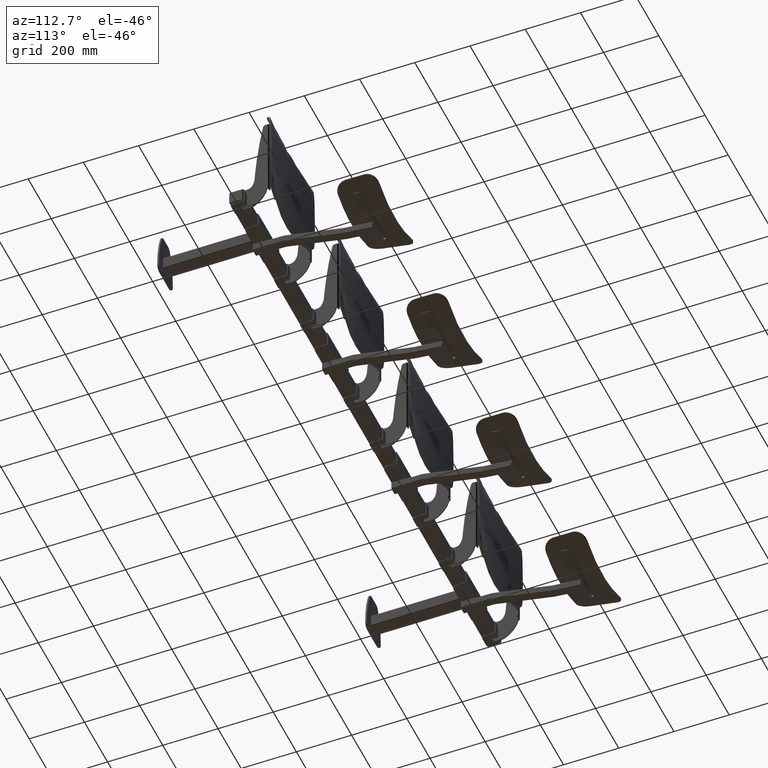
[diagram: clean part render]
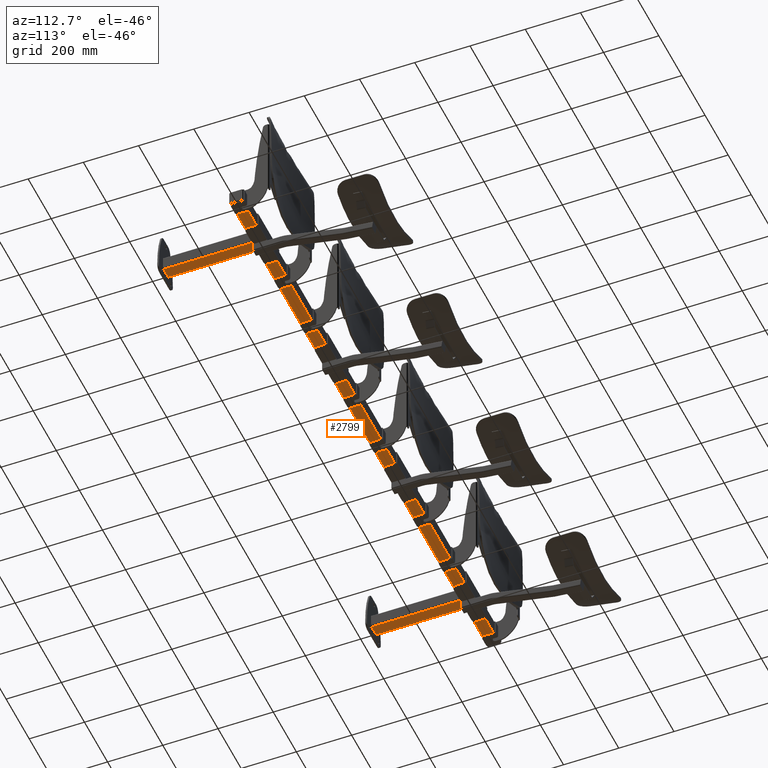
[diagram: same view with one face highlighted and labeled with its STEP entity id]
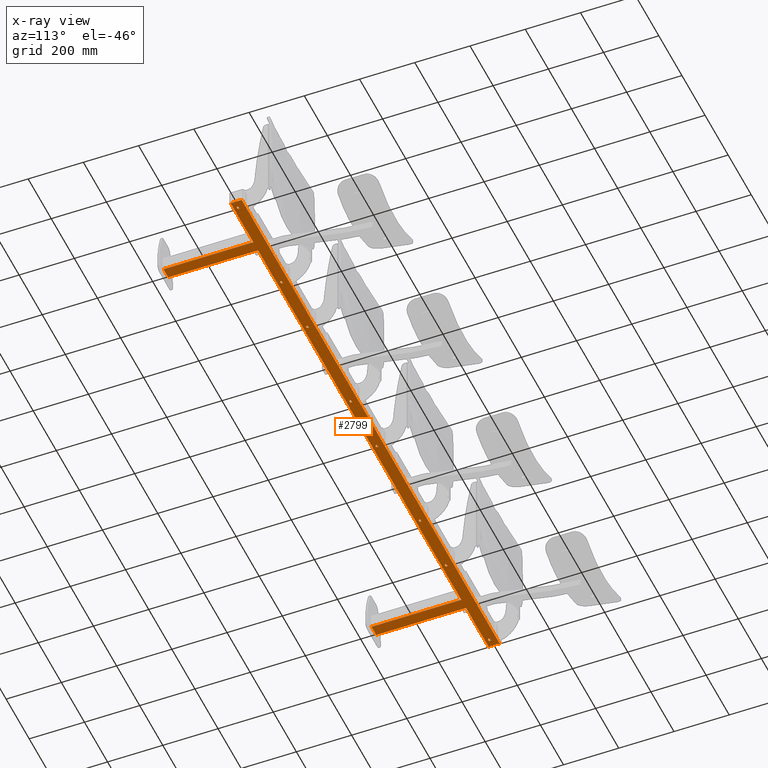
[diagram: x-ray of the same camera — body ghosted, the highlighted face saturated]
A machine part, auxiliary view. The second image highlights one B-rep face of the part: STEP entity #2799.
The next image is the same camera in x-ray: the body ghosted, the highlighted face saturated — about 0% of this face is hidden behind the body in this view.
In plain terms, the highlighted planar face has unit normal (0, 0, -1).
Its self-contained STEP definition (entity closure, byte-faithful):
#116 = AXIS2_PLACEMENT_3D ( 'NONE', #1575, #1576, #1577 ) ;
#118 = AXIS2_PLACEMENT_3D ( 'NONE', #1578, #1579, #1580 ) ;
#121 = AXIS2_PLACEMENT_3D ( 'NONE', #1581, #1582, #1583 ) ;
#123 = AXIS2_PLACEMENT_3D ( 'NONE', #1586, #1587, #1588 ) ;
#548 = AXIS2_PLACEMENT_3D ( 'NONE', #763, #764, #765 ) ;
#551 = AXIS2_PLACEMENT_3D ( 'NONE', #766, #767, #768 ) ;
#554 = AXIS2_PLACEMENT_3D ( 'NONE', #769, #770, #771 ) ;
#555 = AXIS2_PLACEMENT_3D ( 'NONE', #774, #775, #776 ) ;
#739 = CARTESIAN_POINT ( 'NONE',  ( 924.9999999999995500, 330.9999999999999400, -25.00000000000000000 ) ) ;
#742 = CARTESIAN_POINT ( 'NONE',  ( 880.0000000000000000, 325.9999999999999400, -25.00000000000000000 ) ) ;
#743 = CARTESIAN_POINT ( 'NONE',  ( 1116.000000000000000, 330.9999999999999400, -25.00000000000000000 ) ) ;
#744 = DIRECTION ( 'NONE',  ( -0.0000000000000000000, -1.000000000000000000, -0.0000000000000000000 ) ) ;
#745 = DIRECTION ( 'NONE',  ( -1.000000000000000000, -0.0000000000000000000, -0.0000000000000000000 ) ) ;
#746 = CARTESIAN_POINT ( 'NONE',  ( 919.9999999999996600, 5.999999999999999100, -25.00000000000000000 ) ) ;
#747 = DIRECTION ( 'NONE',  ( 3.469446951953614700E-016, -1.000000000000000000, -0.0000000000000000000 ) ) ;
#748 = CARTESIAN_POINT ( 'NONE',  ( 874.9999999999996600, 6.000000000000000900, -25.00000000000000000 ) ) ;
#750 = DIRECTION ( 'NONE',  ( 1.000000000000000000, 0.0000000000000000000, 0.0000000000000000000 ) ) ;
#751 = DIRECTION ( 'NONE',  ( 1.040834085586084500E-015, 1.000000000000000000, -0.0000000000000000000 ) ) ;
#752 = CARTESIAN_POINT ( 'NONE',  ( -875.0000000000000000, 330.9999999999999400, -25.00000000000000000 ) ) ;
#753 = DIRECTION ( 'NONE',  ( -1.000000000000000000, -0.0000000000000000000, -0.0000000000000000000 ) ) ;
#754 = CARTESIAN_POINT ( 'NONE',  ( -879.9999999999997700, 5.999999999999996400, -25.00000000000000000 ) ) ;
#755 = DIRECTION ( 'NONE',  ( 6.938893903907229400E-016, -1.000000000000000000, -0.0000000000000000000 ) ) ;
#756 = CARTESIAN_POINT ( 'NONE',  ( -919.9999999999995500, 325.9999999999999400, -25.00000000000000000 ) ) ;
#757 = DIRECTION ( 'NONE',  ( 3.469446951953614700E-016, 1.000000000000000000, -0.0000000000000000000 ) ) ;
#758 = CARTESIAN_POINT ( 'NONE',  ( -1118.000000000000000, 330.9999999999999400, -25.00000000000000000 ) ) ;
#759 = DIRECTION ( 'NONE',  ( -1.000000000000000000, -0.0000000000000000000, -0.0000000000000000000 ) ) ;
#760 = CARTESIAN_POINT ( 'NONE',  ( -1116.000000000000000, 371.0000000000000000, -25.00000000000000000 ) ) ;
#761 = DIRECTION ( 'NONE',  ( -0.0000000000000000000, 1.000000000000000000, -0.0000000000000000000 ) ) ;
#763 = CARTESIAN_POINT ( 'NONE',  ( -712.5000000000001100, 346.9999999999999400, -25.00000000000000000 ) ) ;
#764 = DIRECTION ( 'NONE',  ( 0.0000000000000000000, 0.0000000000000000000, 1.000000000000000000 ) ) ;
#765 = DIRECTION ( 'NONE',  ( 1.000000000000000000, 0.0000000000000000000, 0.0000000000000000000 ) ) ;
#766 = CARTESIAN_POINT ( 'NONE',  ( 712.5000000000001100, 346.9999999999999400, -25.00000000000000000 ) ) ;
#767 = DIRECTION ( 'NONE',  ( 0.0000000000000000000, 0.0000000000000000000, 1.000000000000000000 ) ) ;
#768 = DIRECTION ( 'NONE',  ( -1.000000000000000000, 0.0000000000000000000, 0.0000000000000000000 ) ) ;
#769 = CARTESIAN_POINT ( 'NONE',  ( -112.5000000000001600, 346.9999999999999400, -25.00000000000000000 ) ) ;
#770 = DIRECTION ( 'NONE',  ( 0.0000000000000000000, 0.0000000000000000000, 1.000000000000000000 ) ) ;
#771 = DIRECTION ( 'NONE',  ( 1.000000000000000000, 0.0000000000000000000, 0.0000000000000000000 ) ) ;
#774 = CARTESIAN_POINT ( 'NONE',  ( 487.4999999999998300, 346.9999999999999400, -25.00000000000000000 ) ) ;
#775 = DIRECTION ( 'NONE',  ( 0.0000000000000000000, 0.0000000000000000000, 1.000000000000000000 ) ) ;
#776 = DIRECTION ( 'NONE',  ( 1.000000000000000000, 0.0000000000000000000, 0.0000000000000000000 ) ) ;
#1106 = VERTEX_POINT ( 'NONE', #4244 ) ;
#1114 = VERTEX_POINT ( 'NONE', #4288 ) ;
#1120 = VERTEX_POINT ( 'NONE', #4257 ) ;
#1124 = VERTEX_POINT ( 'NONE', #4307 ) ;
#1155 = VERTEX_POINT ( 'NONE', #4325 ) ;
#1220 = VERTEX_POINT ( 'NONE', #4361 ) ;
#1224 = VERTEX_POINT ( 'NONE', #4305 ) ;
#1230 = VERTEX_POINT ( 'NONE', #4327 ) ;
#1262 = VERTEX_POINT ( 'NONE', #16831 ) ;
#1302 = VERTEX_POINT ( 'NONE', #16847 ) ;
#1562 = DIRECTION ( 'NONE',  ( 1.000000000000000000, -0.0000000000000000000, -0.0000000000000000000 ) ) ;
#1575 = CARTESIAN_POINT ( 'NONE',  ( 112.4999999999998300, 346.9999999999998900, -25.00000000000000000 ) ) ;
#1576 = DIRECTION ( 'NONE',  ( 0.0000000000000000000, 0.0000000000000000000, 1.000000000000000000 ) ) ;
#1577 = DIRECTION ( 'NONE',  ( 1.000000000000000000, 0.0000000000000000000, 0.0000000000000000000 ) ) ;
#1578 = CARTESIAN_POINT ( 'NONE',  ( -487.5000000000001700, 346.9999999999998900, -25.00000000000000000 ) ) ;
#1579 = DIRECTION ( 'NONE',  ( 0.0000000000000000000, 0.0000000000000000000, 1.000000000000000000 ) ) ;
#1580 = DIRECTION ( 'NONE',  ( 1.000000000000000000, 0.0000000000000000000, 0.0000000000000000000 ) ) ;
#1581 = CARTESIAN_POINT ( 'NONE',  ( 1087.500000000000200, 346.9999999999998900, -25.00000000000000000 ) ) ;
#1582 = DIRECTION ( 'NONE',  ( 0.0000000000000000000, 0.0000000000000000000, 1.000000000000000000 ) ) ;
#1583 = DIRECTION ( 'NONE',  ( -1.000000000000000000, 0.0000000000000000000, 0.0000000000000000000 ) ) ;
#1585 = CARTESIAN_POINT ( 'NONE',  ( 1118.000000000000000, 371.0000000000000000, -25.00000000000000000 ) ) ;
#1586 = CARTESIAN_POINT ( 'NONE',  ( -1087.500000000000200, 346.9999999999998900, -25.00000000000000000 ) ) ;
#1587 = DIRECTION ( 'NONE',  ( 0.0000000000000000000, 0.0000000000000000000, 1.000000000000000000 ) ) ;
#1588 = DIRECTION ( 'NONE',  ( 1.000000000000000000, 0.0000000000000000000, 0.0000000000000000000 ) ) ;
#2460 = CARTESIAN_POINT ( 'NONE',  ( -1116.000000000000000, 330.9999999999999400, -25.00000000000000000 ) ) ;
#2465 = CARTESIAN_POINT ( 'NONE',  ( 107.2499999999997600, 346.9999999999998900, -25.00000000000000000 ) ) ;
#2494 = CARTESIAN_POINT ( 'NONE',  ( 1082.250000000000200, 346.9999999999998900, -25.00000000000000000 ) ) ;
#2495 = CARTESIAN_POINT ( 'NONE',  ( 482.2499999999998300, 346.9999999999999400, -25.00000000000000000 ) ) ;
#2496 = CARTESIAN_POINT ( 'NONE',  ( -717.7500000000001100, 346.9999999999999400, -25.00000000000000000 ) ) ;
#2499 = CARTESIAN_POINT ( 'NONE',  ( -482.2500000000001100, 346.9999999999998900, -25.00000000000000000 ) ) ;
#2501 = CARTESIAN_POINT ( 'NONE',  ( 492.7499999999997700, 346.9999999999999400, -25.00000000000000000 ) ) ;
#2505 = CARTESIAN_POINT ( 'NONE',  ( 707.2500000000001100, 346.9999999999999400, -25.00000000000000000 ) ) ;
#2507 = CARTESIAN_POINT ( 'NONE',  ( 919.9999999999995500, 330.9999999999999400, -25.00000000000000000 ) ) ;
#2534 = CARTESIAN_POINT ( 'NONE',  ( -1092.750000000000000, 346.9999999999998900, -25.00000000000000000 ) ) ;
#2535 = CARTESIAN_POINT ( 'NONE',  ( -492.7500000000001700, 346.9999999999998900, -25.00000000000000000 ) ) ;
#2542 = CARTESIAN_POINT ( 'NONE',  ( -107.2500000000002100, 346.9999999999999400, -25.00000000000000000 ) ) ;
#2559 = CARTESIAN_POINT ( 'NONE',  ( -919.9999999999996600, 6.000000000000000900, -25.00000000000000000 ) ) ;
#2568 = CARTESIAN_POINT ( 'NONE',  ( -1082.250000000000200, 346.9999999999998900, -25.00000000000000000 ) ) ;
#2582 = CARTESIAN_POINT ( 'NONE',  ( 879.9999999999996600, 6.000000000000000900, -25.00000000000000000 ) ) ;
#2586 = CARTESIAN_POINT ( 'NONE',  ( -1115.999999999999800, 371.0000000000000000, -25.00000000000000000 ) ) ;
#2612 = CARTESIAN_POINT ( 'NONE',  ( -879.9999999999997700, 6.000000000000000000, -25.00000000000000000 ) ) ;
#2643 = CARTESIAN_POINT ( 'NONE',  ( -919.9999999999995500, 330.9999999999999400, -25.00000000000000000 ) ) ;
#2799 = ADVANCED_FACE ( 'NONE', ( #6352, #6353, #6354, #6356, #6355, #6357, #6358, #6359, #6360 ), #8229, .T. ) ;
#2988 = EDGE_CURVE ( 'NONE', #1302, #16509, #22497, .T. ) ;
#2989 = EDGE_CURVE ( 'NONE', #16543, #16579, #22498, .T. ) ;
#2990 = EDGE_CURVE ( 'NONE', #1155, #16538, #22499, .T. ) ;
#2991 = EDGE_CURVE ( 'NONE', #16612, #16578, #22500, .T. ) ;
#2992 = EDGE_CURVE ( 'NONE', #16630, #1230, #22501, .T. ) ;
#4244 = CARTESIAN_POINT ( 'NONE',  ( -880.0000000000000000, 330.9999999999999400, -25.00000000000000000 ) ) ;
#4257 = CARTESIAN_POINT ( 'NONE',  ( 717.7500000000001100, 346.9999999999999400, -25.00000000000000000 ) ) ;
#4288 = CARTESIAN_POINT ( 'NONE',  ( 1116.000000000000000, 330.9999999999999400, -25.00000000000000000 ) ) ;
#4305 = CARTESIAN_POINT ( 'NONE',  ( 919.9999999999996600, 6.000000000000000900, -25.00000000000000000 ) ) ;
#4307 = CARTESIAN_POINT ( 'NONE',  ( 880.0000000000000000, 330.9999999999999400, -25.00000000000000000 ) ) ;
#4325 = CARTESIAN_POINT ( 'NONE',  ( 1092.750000000000000, 346.9999999999998900, -25.00000000000000000 ) ) ;
#4327 = CARTESIAN_POINT ( 'NONE',  ( 1116.000000000000000, 371.0000000000000000, -25.00000000000000000 ) ) ;
#4361 = CARTESIAN_POINT ( 'NONE',  ( -117.7500000000001000, 346.9999999999999400, -25.00000000000000000 ) ) ;
#4633 = ORIENTED_EDGE ( 'NONE', *, *, #22440, .T. ) ;
#4634 = ORIENTED_EDGE ( 'NONE', *, *, #2988, .T. ) ;
#4635 = ORIENTED_EDGE ( 'NONE', *, *, #22448, .T. ) ;
#4636 = ORIENTED_EDGE ( 'NONE', *, *, #2989, .T. ) ;
#4637 = ORIENTED_EDGE ( 'NONE', *, *, #22456, .T. ) ;
#4638 = ORIENTED_EDGE ( 'NONE', *, *, #2990, .T. ) ;
#4639 = ORIENTED_EDGE ( 'NONE', *, *, #22464, .T. ) ;
#4640 = ORIENTED_EDGE ( 'NONE', *, *, #2991, .T. ) ;
#4641 = ORIENTED_EDGE ( 'NONE', *, *, #2992, .T. ) ;
#4642 = ORIENTED_EDGE ( 'NONE', *, *, #17498, .T. ) ;
#4643 = ORIENTED_EDGE ( 'NONE', *, *, #17499, .T. ) ;
#4644 = ORIENTED_EDGE ( 'NONE', *, *, #17500, .T. ) ;
#4645 = ORIENTED_EDGE ( 'NONE', *, *, #17501, .F. ) ;
#4646 = ORIENTED_EDGE ( 'NONE', *, *, #17502, .T. ) ;
#4647 = ORIENTED_EDGE ( 'NONE', *, *, #17503, .T. ) ;
#4648 = ORIENTED_EDGE ( 'NONE', *, *, #17504, .T. ) ;
#4649 = ORIENTED_EDGE ( 'NONE', *, *, #21981, .F. ) ;
#4650 = ORIENTED_EDGE ( 'NONE', *, *, #17505, .T. ) ;
#4651 = ORIENTED_EDGE ( 'NONE', *, *, #17506, .T. ) ;
#4652 = ORIENTED_EDGE ( 'NONE', *, *, #17507, .T. ) ;
#4653 = ORIENTED_EDGE ( 'NONE', *, *, #22460, .T. ) ;
#4654 = ORIENTED_EDGE ( 'NONE', *, *, #17508, .T. ) ;
#4655 = ORIENTED_EDGE ( 'NONE', *, *, #22452, .T. ) ;
#4656 = ORIENTED_EDGE ( 'NONE', *, *, #17509, .T. ) ;
#4657 = ORIENTED_EDGE ( 'NONE', *, *, #22444, .T. ) ;
#4658 = ORIENTED_EDGE ( 'NONE', *, *, #17510, .T. ) ;
#4659 = ORIENTED_EDGE ( 'NONE', *, *, #22436, .T. ) ;
#4660 = ORIENTED_EDGE ( 'NONE', *, *, #17511, .T. ) ;
#6352 = FACE_BOUND ( 'NONE', #14392, .T. ) ;
#6353 = FACE_BOUND ( 'NONE', #15810, .T. ) ;
#6354 = FACE_BOUND ( 'NONE', #14486, .T. ) ;
#6355 = FACE_OUTER_BOUND ( 'NONE', #14438, .T. ) ;
#6356 = FACE_BOUND ( 'NONE', #14429, .T. ) ;
#6357 = FACE_BOUND ( 'NONE', #14476, .T. ) ;
#6358 = FACE_BOUND ( 'NONE', #14432, .T. ) ;
#6359 = FACE_BOUND ( 'NONE', #14483, .T. ) ;
#6360 = FACE_BOUND ( 'NONE', #14427, .T. ) ;
#6818 = LINE ( 'NONE', #18565, #6820 ) ;
#6820 = VECTOR ( 'NONE', #18564, 1000.000000000000000 ) ;
#7129 = CIRCLE ( 'NONE', #7920, 5.249999999999976900 ) ;
#7135 = CIRCLE ( 'NONE', #7922, 5.250000000000060400 ) ;
#7141 = CIRCLE ( 'NONE', #7924, 5.249999999999949400 ) ;
#7147 = CIRCLE ( 'NONE', #7926, 5.250000000000032000 ) ;
#7153 = CIRCLE ( 'NONE', #7928, 5.249999999999976900 ) ;
#7159 = CIRCLE ( 'NONE', #7930, 5.249999999999976900 ) ;
#7165 = CIRCLE ( 'NONE', #7932, 5.249999999999976900 ) ;
#7171 = CIRCLE ( 'NONE', #7934, 5.249999999999976900 ) ;
#7372 = VECTOR ( 'NONE', #744, 1000.000000000000000 ) ;
#7377 = LINE ( 'NONE', #739, #7382 ) ;
#7379 = LINE ( 'NONE', #742, #7388 ) ;
#7380 = LINE ( 'NONE', #743, #7372 ) ;
#7381 = LINE ( 'NONE', #746, #7384 ) ;
#7382 = VECTOR ( 'NONE', #745, 1000.000000000000000 ) ;
#7383 = LINE ( 'NONE', #748, #7386 ) ;
#7384 = VECTOR ( 'NONE', #747, 1000.000000000000000 ) ;
#7385 = CIRCLE ( 'NONE', #551, 5.249999999999976900 ) ;
#7386 = VECTOR ( 'NONE', #750, 1000.000000000000000 ) ;
#7387 = LINE ( 'NONE', #752, #7390 ) ;
#7388 = VECTOR ( 'NONE', #751, 1000.000000000000000 ) ;
#7389 = LINE ( 'NONE', #754, #7392 ) ;
#7390 = VECTOR ( 'NONE', #753, 1000.000000000000000 ) ;
#7391 = LINE ( 'NONE', #756, #7394 ) ;
#7392 = VECTOR ( 'NONE', #755, 1000.000000000000000 ) ;
#7393 = LINE ( 'NONE', #758, #7396 ) ;
#7394 = VECTOR ( 'NONE', #757, 1000.000000000000000 ) ;
#7395 = LINE ( 'NONE', #760, #7398 ) ;
#7396 = VECTOR ( 'NONE', #759, 1000.000000000000000 ) ;
#7397 = CIRCLE ( 'NONE', #548, 5.249999999999976900 ) ;
#7398 = VECTOR ( 'NONE', #761, 1000.000000000000000 ) ;
#7399 = CIRCLE ( 'NONE', #554, 5.249999999999949400 ) ;
#7400 = CIRCLE ( 'NONE', #555, 5.249999999999976900 ) ;
#7920 = AXIS2_PLACEMENT_3D ( 'NONE', #19328, #19329, #19330 ) ;
#7922 = AXIS2_PLACEMENT_3D ( 'NONE', #19337, #18024, #18025 ) ;
#7924 = AXIS2_PLACEMENT_3D ( 'NONE', #18034, #18035, #18036 ) ;
#7926 = AXIS2_PLACEMENT_3D ( 'NONE', #18044, #18045, #18046 ) ;
#7928 = AXIS2_PLACEMENT_3D ( 'NONE', #18054, #18055, #18056 ) ;
#7930 = AXIS2_PLACEMENT_3D ( 'NONE', #18064, #18065, #18066 ) ;
#7932 = AXIS2_PLACEMENT_3D ( 'NONE', #18074, #18075, #18076 ) ;
#7934 = AXIS2_PLACEMENT_3D ( 'NONE', #18085, #18086, #18087 ) ;
#8229 = PLANE ( 'NONE',  #22159 ) ;
#14392 = EDGE_LOOP ( 'NONE', ( #4633, #4634 ) ) ;
#14427 = EDGE_LOOP ( 'NONE', ( #4659, #4660 ) ) ;
#14429 = EDGE_LOOP ( 'NONE', ( #4639, #4640 ) ) ;
#14432 = EDGE_LOOP ( 'NONE', ( #4655, #4656 ) ) ;
#14438 = EDGE_LOOP ( 'NONE', ( #4641, #4642, #4643, #4644, #4645, #4646, #4647, #4648, #4649, #4650, #4651, #4652 ) ) ;
#14476 = EDGE_LOOP ( 'NONE', ( #4653, #4654 ) ) ;
#14483 = EDGE_LOOP ( 'NONE', ( #4657, #4658 ) ) ;
#14486 = EDGE_LOOP ( 'NONE', ( #4637, #4638 ) ) ;
#15810 = EDGE_LOOP ( 'NONE', ( #4635, #4636 ) ) ;
#16503 = VERTEX_POINT ( 'NONE', #2460 ) ;
#16509 = VERTEX_POINT ( 'NONE', #2465 ) ;
#16538 = VERTEX_POINT ( 'NONE', #2494 ) ;
#16539 = VERTEX_POINT ( 'NONE', #2495 ) ;
#16540 = VERTEX_POINT ( 'NONE', #2496 ) ;
#16543 = VERTEX_POINT ( 'NONE', #2499 ) ;
#16545 = VERTEX_POINT ( 'NONE', #2501 ) ;
#16549 = VERTEX_POINT ( 'NONE', #2505 ) ;
#16551 = VERTEX_POINT ( 'NONE', #2507 ) ;
#16578 = VERTEX_POINT ( 'NONE', #2534 ) ;
#16579 = VERTEX_POINT ( 'NONE', #2535 ) ;
#16586 = VERTEX_POINT ( 'NONE', #2542 ) ;
#16603 = VERTEX_POINT ( 'NONE', #2559 ) ;
#16612 = VERTEX_POINT ( 'NONE', #2568 ) ;
#16626 = VERTEX_POINT ( 'NONE', #2582 ) ;
#16630 = VERTEX_POINT ( 'NONE', #2586 ) ;
#16656 = VERTEX_POINT ( 'NONE', #2612 ) ;
#16687 = VERTEX_POINT ( 'NONE', #2643 ) ;
#16831 = CARTESIAN_POINT ( 'NONE',  ( -707.2500000000001100, 346.9999999999999400, -25.00000000000000000 ) ) ;
#16847 = CARTESIAN_POINT ( 'NONE',  ( 117.7499999999998900, 346.9999999999998900, -25.00000000000000000 ) ) ;
#17498 = EDGE_CURVE ( 'NONE', #1230, #1114, #7380, .T. ) ;
#17499 = EDGE_CURVE ( 'NONE', #1114, #16551, #7377, .T. ) ;
#17500 = EDGE_CURVE ( 'NONE', #16551, #1224, #7381, .T. ) ;
#17501 = EDGE_CURVE ( 'NONE', #16626, #1224, #7383, .T. ) ;
#17502 = EDGE_CURVE ( 'NONE', #16626, #1124, #7379, .T. ) ;
#17503 = EDGE_CURVE ( 'NONE', #1124, #1106, #7387, .T. ) ;
#17504 = EDGE_CURVE ( 'NONE', #1106, #16656, #7389, .T. ) ;
#17505 = EDGE_CURVE ( 'NONE', #16603, #16687, #7391, .T. ) ;
#17506 = EDGE_CURVE ( 'NONE', #16687, #16503, #7393, .T. ) ;
#17507 = EDGE_CURVE ( 'NONE', #16503, #16630, #7395, .T. ) ;
#17508 = EDGE_CURVE ( 'NONE', #1262, #16540, #7397, .T. ) ;
#17509 = EDGE_CURVE ( 'NONE', #1120, #16549, #7385, .T. ) ;
#17510 = EDGE_CURVE ( 'NONE', #16586, #1220, #7399, .T. ) ;
#17511 = EDGE_CURVE ( 'NONE', #16545, #16539, #7400, .T. ) ;
#17819 = CARTESIAN_POINT ( 'NONE',  ( 0.0000000000000000000, 0.0000000000000000000, -25.00000000000000000 ) ) ;
#17820 = DIRECTION ( 'NONE',  ( 0.0000000000000000000, 0.0000000000000000000, -1.000000000000000000 ) ) ;
#17822 = DIRECTION ( 'NONE',  ( -1.000000000000000000, 0.0000000000000000000, -0.0000000000000000000 ) ) ;
#18024 = DIRECTION ( 'NONE',  ( 0.0000000000000000000, 0.0000000000000000000, 1.000000000000000000 ) ) ;
#18025 = DIRECTION ( 'NONE',  ( 1.000000000000000000, 0.0000000000000000000, 0.0000000000000000000 ) ) ;
#18034 = CARTESIAN_POINT ( 'NONE',  ( -112.5000000000001600, 346.9999999999999400, -25.00000000000000000 ) ) ;
#18035 = DIRECTION ( 'NONE',  ( 0.0000000000000000000, 0.0000000000000000000, 1.000000000000000000 ) ) ;
#18036 = DIRECTION ( 'NONE',  ( 1.000000000000000000, 0.0000000000000000000, 0.0000000000000000000 ) ) ;
#18044 = CARTESIAN_POINT ( 'NONE',  ( -487.5000000000001700, 346.9999999999998900, -25.00000000000000000 ) ) ;
#18045 = DIRECTION ( 'NONE',  ( 0.0000000000000000000, 0.0000000000000000000, 1.000000000000000000 ) ) ;
#18046 = DIRECTION ( 'NONE',  ( 1.000000000000000000, 0.0000000000000000000, 0.0000000000000000000 ) ) ;
#18054 = CARTESIAN_POINT ( 'NONE',  ( 712.5000000000001100, 346.9999999999999400, -25.00000000000000000 ) ) ;
#18055 = DIRECTION ( 'NONE',  ( 0.0000000000000000000, 0.0000000000000000000, 1.000000000000000000 ) ) ;
#18056 = DIRECTION ( 'NONE',  ( -1.000000000000000000, 0.0000000000000000000, 0.0000000000000000000 ) ) ;
#18064 = CARTESIAN_POINT ( 'NONE',  ( 1087.500000000000200, 346.9999999999998900, -25.00000000000000000 ) ) ;
#18065 = DIRECTION ( 'NONE',  ( 0.0000000000000000000, 0.0000000000000000000, 1.000000000000000000 ) ) ;
#18066 = DIRECTION ( 'NONE',  ( -1.000000000000000000, 0.0000000000000000000, 0.0000000000000000000 ) ) ;
#18074 = CARTESIAN_POINT ( 'NONE',  ( -712.5000000000001100, 346.9999999999999400, -25.00000000000000000 ) ) ;
#18075 = DIRECTION ( 'NONE',  ( 0.0000000000000000000, 0.0000000000000000000, 1.000000000000000000 ) ) ;
#18076 = DIRECTION ( 'NONE',  ( 1.000000000000000000, 0.0000000000000000000, 0.0000000000000000000 ) ) ;
#18085 = CARTESIAN_POINT ( 'NONE',  ( -1087.500000000000200, 346.9999999999998900, -25.00000000000000000 ) ) ;
#18086 = DIRECTION ( 'NONE',  ( 0.0000000000000000000, 0.0000000000000000000, 1.000000000000000000 ) ) ;
#18087 = DIRECTION ( 'NONE',  ( 1.000000000000000000, 0.0000000000000000000, 0.0000000000000000000 ) ) ;
#18564 = DIRECTION ( 'NONE',  ( 1.000000000000000000, -1.734723475976809600E-017, 0.0000000000000000000 ) ) ;
#18565 = CARTESIAN_POINT ( 'NONE',  ( -924.9999999999996600, 6.000000000000000900, -25.00000000000000000 ) ) ;
#19328 = CARTESIAN_POINT ( 'NONE',  ( 487.4999999999998300, 346.9999999999999400, -25.00000000000000000 ) ) ;
#19329 = DIRECTION ( 'NONE',  ( 0.0000000000000000000, 0.0000000000000000000, 1.000000000000000000 ) ) ;
#19330 = DIRECTION ( 'NONE',  ( 1.000000000000000000, 0.0000000000000000000, 0.0000000000000000000 ) ) ;
#19337 = CARTESIAN_POINT ( 'NONE',  ( 112.4999999999998300, 346.9999999999998900, -25.00000000000000000 ) ) ;
#21981 = EDGE_CURVE ( 'NONE', #16603, #16656, #6818, .T. ) ;
#22159 = AXIS2_PLACEMENT_3D ( 'NONE', #17819, #17820, #17822 ) ;
#22436 = EDGE_CURVE ( 'NONE', #16539, #16545, #7129, .T. ) ;
#22440 = EDGE_CURVE ( 'NONE', #16509, #1302, #7135, .T. ) ;
#22444 = EDGE_CURVE ( 'NONE', #1220, #16586, #7141, .T. ) ;
#22448 = EDGE_CURVE ( 'NONE', #16579, #16543, #7147, .T. ) ;
#22452 = EDGE_CURVE ( 'NONE', #16549, #1120, #7153, .T. ) ;
#22456 = EDGE_CURVE ( 'NONE', #16538, #1155, #7159, .T. ) ;
#22460 = EDGE_CURVE ( 'NONE', #16540, #1262, #7165, .T. ) ;
#22464 = EDGE_CURVE ( 'NONE', #16578, #16612, #7171, .T. ) ;
#22497 = CIRCLE ( 'NONE', #116, 5.250000000000060400 ) ;
#22498 = CIRCLE ( 'NONE', #118, 5.250000000000032000 ) ;
#22499 = CIRCLE ( 'NONE', #121, 5.249999999999976900 ) ;
#22500 = CIRCLE ( 'NONE', #123, 5.249999999999976900 ) ;
#22501 = LINE ( 'NONE', #1585, #22504 ) ;
#22504 = VECTOR ( 'NONE', #1562, 1000.000000000000000 ) ;